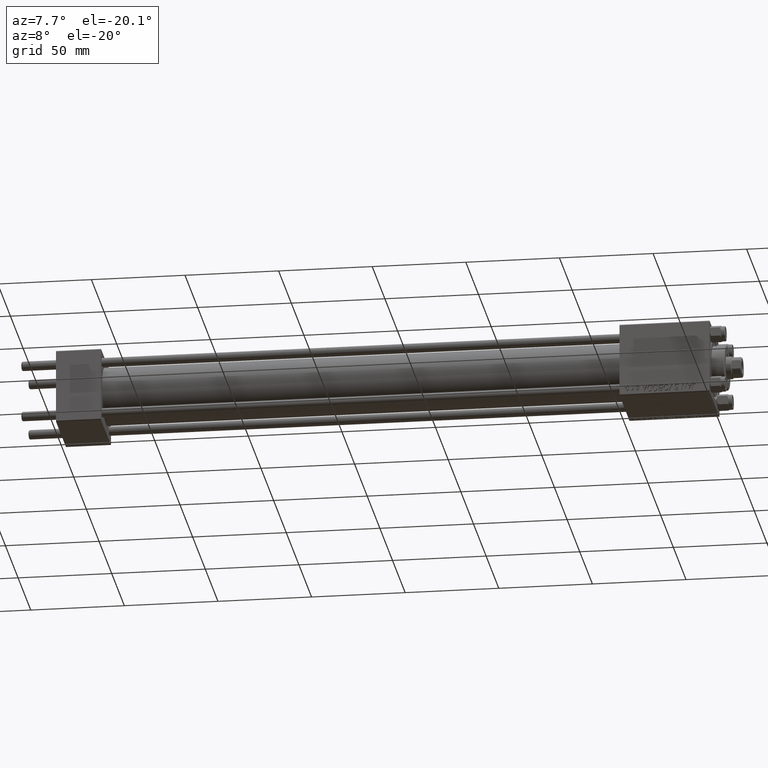
[diagram: clean part render]
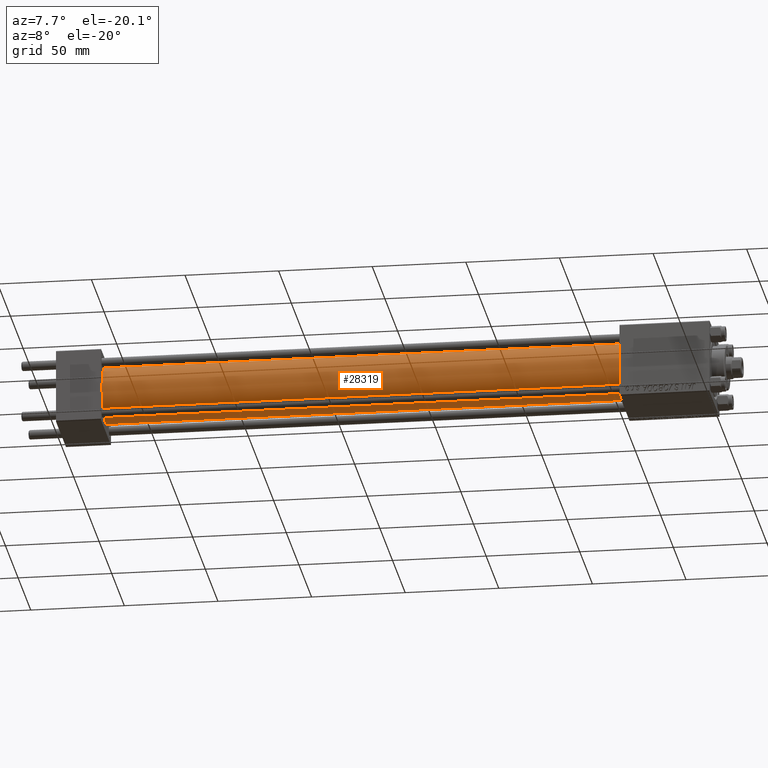
[diagram: same view with one face highlighted and labeled with its STEP entity id]
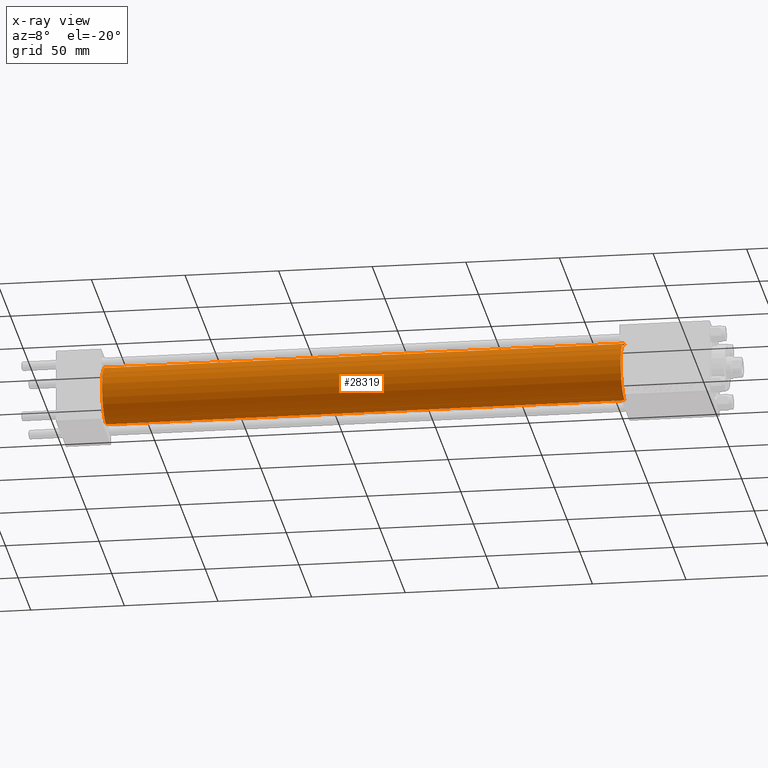
[diagram: x-ray of the same camera — body ghosted, the highlighted face saturated]
A machine part, auxiliary view. The second image highlights one B-rep face of the part: STEP entity #28319.
The next image is the same camera in x-ray: the body ghosted, the highlighted face saturated — about 0% of this face is hidden behind the body in this view.
In plain terms, the highlighted cylindrical surface (edge-blend (fillet) strip) has radius 15.5 mm, axis along (-1, -0, -0).
Its self-contained STEP definition (entity closure, byte-faithful):
#4651 = FACE_OUTER_BOUND ( 'NONE', #9762, .T. ) ;
#5137 = DIRECTION ( 'NONE',  ( 0.000000000000000000, 0.000000000000000000, 1.000000000000000000 ) ) ;
#6864 = VECTOR ( 'NONE', #21839, 1000.000000000000000 ) ;
#7448 = VERTEX_POINT ( 'NONE', #30199 ) ;
#9591 = DIRECTION ( 'NONE',  ( 1.000000000000000000, 0.000000000000000000, 0.000000000000000000 ) ) ;
#9682 = AXIS2_PLACEMENT_3D ( 'NONE', #46474, #9591, #21452 ) ;
#9762 = EDGE_LOOP ( 'NONE', ( #13086, #40026, #13294, #41688 ) ) ;
#9955 = VERTEX_POINT ( 'NONE', #16244 ) ;
#10100 = AXIS2_PLACEMENT_3D ( 'NONE', #28297, #23558, #5137 ) ;
#11280 = EDGE_CURVE ( 'NONE', #7448, #9955, #17760, .T. ) ;
#11600 = VERTEX_POINT ( 'NONE', #12343 ) ;
#12343 = CARTESIAN_POINT ( 'NONE',  ( 24.00000000000002132, 0.000000000000000000, 15.50000000000000000 ) ) ;
#12352 = LINE ( 'NONE', #16889, #32445 ) ;
#13086 = ORIENTED_EDGE ( 'NONE', *, *, #37827, .F. ) ;
#13294 = ORIENTED_EDGE ( 'NONE', *, *, #18523, .T. ) ;
#14182 = CIRCLE ( 'NONE', #44726, 15.50000000000000000 ) ;
#16244 = CARTESIAN_POINT ( 'NONE',  ( 301.0000000000000568, 1.898202538678397557E-15, -15.50000000000000000 ) ) ;
#16536 = DIRECTION ( 'NONE',  ( 0.000000000000000000, 0.000000000000000000, 1.000000000000000000 ) ) ;
#16889 = CARTESIAN_POINT ( 'NONE',  ( 301.0000000000000568, 0.000000000000000000, 15.50000000000000000 ) ) ;
#17760 = CIRCLE ( 'NONE', #9682, 15.50000000000000000 ) ;
#18523 = EDGE_CURVE ( 'NONE', #7448, #11600, #12352, .T. ) ;
#21452 = DIRECTION ( 'NONE',  ( 0.000000000000000000, 0.000000000000000000, -1.000000000000000000 ) ) ;
#21839 = DIRECTION ( 'NONE',  ( -1.000000000000000000, -0.000000000000000000, -0.000000000000000000 ) ) ;
#23090 = VERTEX_POINT ( 'NONE', #31926 ) ;
#23558 = DIRECTION ( 'NONE',  ( -1.000000000000000000, -0.000000000000000000, -0.000000000000000000 ) ) ;
#24830 = CARTESIAN_POINT ( 'NONE',  ( 24.00000000000002132, 0.000000000000000000, 0.000000000000000000 ) ) ;
#27317 = CYLINDRICAL_SURFACE ( 'NONE', #10100, 15.50000000000000000 ) ;
#28297 = CARTESIAN_POINT ( 'NONE',  ( 301.0000000000000568, 0.000000000000000000, 0.000000000000000000 ) ) ;
#28319 = ADVANCED_FACE ( 'NONE', ( #4651 ), #27317, .T. ) ;
#29622 = LINE ( 'NONE', #49522, #6864 ) ;
#30199 = CARTESIAN_POINT ( 'NONE',  ( 301.0000000000000568, 0.000000000000000000, 15.50000000000000000 ) ) ;
#31886 = DIRECTION ( 'NONE',  ( 1.000000000000000000, 0.000000000000000000, 0.000000000000000000 ) ) ;
#31926 = CARTESIAN_POINT ( 'NONE',  ( 24.00000000000002132, 1.898202538678397557E-15, -15.50000000000000000 ) ) ;
#32445 = VECTOR ( 'NONE', #41269, 1000.000000000000000 ) ;
#37827 = EDGE_CURVE ( 'NONE', #9955, #23090, #29622, .T. ) ;
#40026 = ORIENTED_EDGE ( 'NONE', *, *, #11280, .F. ) ;
#41269 = DIRECTION ( 'NONE',  ( -1.000000000000000000, -0.000000000000000000, -0.000000000000000000 ) ) ;
#41688 = ORIENTED_EDGE ( 'NONE', *, *, #44836, .T. ) ;
#44726 = AXIS2_PLACEMENT_3D ( 'NONE', #24830, #31886, #16536 ) ;
#44836 = EDGE_CURVE ( 'NONE', #11600, #23090, #14182, .T. ) ;
#46474 = CARTESIAN_POINT ( 'NONE',  ( 301.0000000000000568, 0.000000000000000000, 0.000000000000000000 ) ) ;
#49522 = CARTESIAN_POINT ( 'NONE',  ( 301.0000000000000568, 1.898202538678397557E-15, -15.50000000000000000 ) ) ;